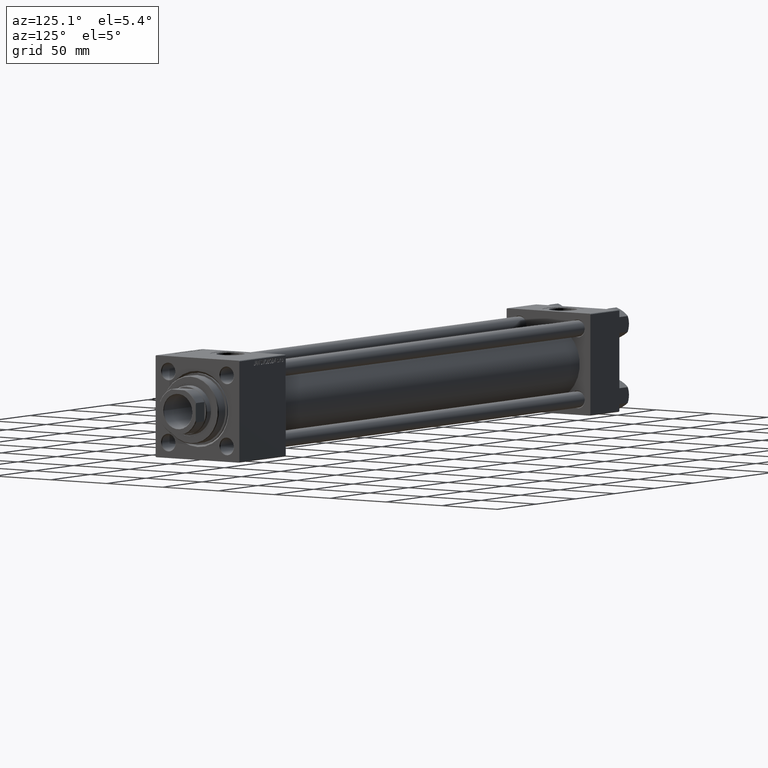
[diagram: clean part render]
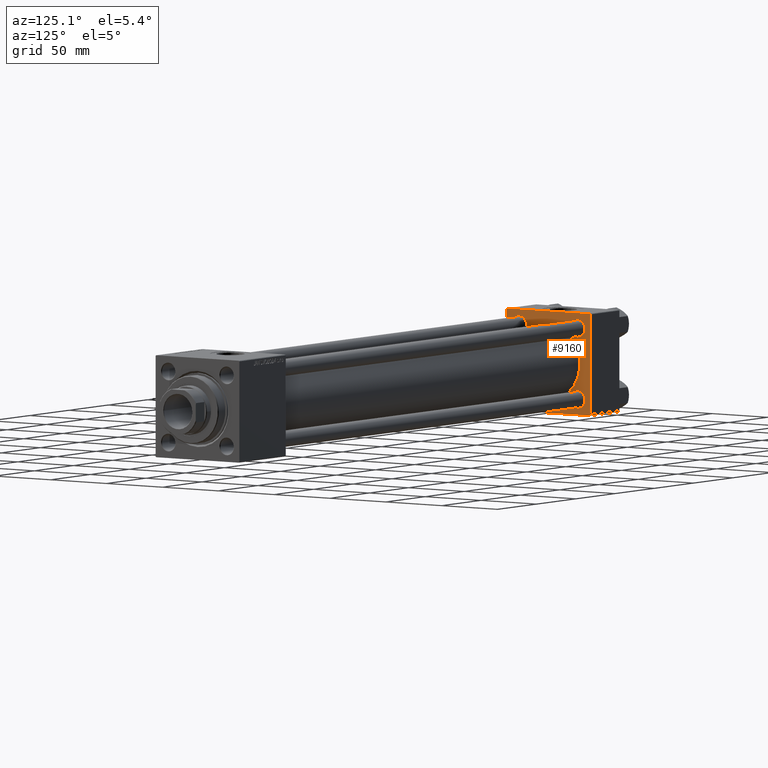
[diagram: same view with one face highlighted and labeled with its STEP entity id]
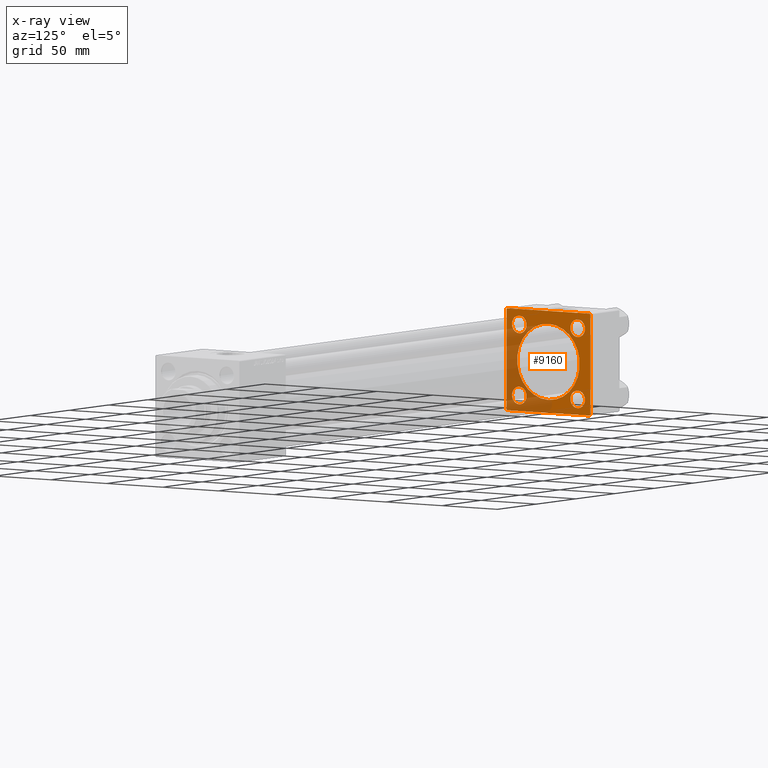
[diagram: x-ray of the same camera — body ghosted, the highlighted face saturated]
A machine part, auxiliary view. The second image highlights one B-rep face of the part: STEP entity #9160.
The next image is the same camera in x-ray: the body ghosted, the highlighted face saturated — about 37% of this face is hidden behind the body in this view.
In plain terms, the highlighted planar face has unit normal (-1, 0, 0).
Its self-contained STEP definition (entity closure, byte-faithful):
#152 = AXIS2_PLACEMENT_3D ( 'NONE', #41262, #33400, #26534 ) ;
#464 = CARTESIAN_POINT ( 'NONE',  ( 37.00000000000000000, -37.50000000000000000, -37.00000000000003553 ) ) ;
#982 = AXIS2_PLACEMENT_3D ( 'NONE', #27047, #30359, #42535 ) ;
#1073 = CARTESIAN_POINT ( 'NONE',  ( 36.99999999999997868, -2.602085213965210642E-15, 0.000000000000000000 ) ) ;
#1779 = CARTESIAN_POINT ( 'NONE',  ( 36.99999999999997868, 8.269258236473776482E-16, -28.00000000000000000 ) ) ;
#1851 = VECTOR ( 'NONE', #21358, 1000.000000000000114 ) ;
#2112 = CARTESIAN_POINT ( 'NONE',  ( 37.00000000000000000, 26.14999999999999858, 26.15000000000000213 ) ) ;
#2252 = CARTESIAN_POINT ( 'NONE',  ( 37.00000000000000000, -26.14999999999999147, -19.65000000000000924 ) ) ;
#2439 = CARTESIAN_POINT ( 'NONE',  ( 37.00000000000000000, -26.14999999999999147, -26.15000000000000924 ) ) ;
#3285 = DIRECTION ( 'NONE',  ( -0.000000000000000000, -0.7071067811865474617, -0.7071067811865474617 ) ) ;
#3317 = CARTESIAN_POINT ( 'NONE',  ( 37.00000000000000000, -26.14999999999999147, -32.65000000000001279 ) ) ;
#3660 = VERTEX_POINT ( 'NONE', #1779 ) ;
#3721 = ORIENTED_EDGE ( 'NONE', *, *, #48824, .T. ) ;
#4701 = AXIS2_PLACEMENT_3D ( 'NONE', #42688, #7907, #39128 ) ;
#4941 = VERTEX_POINT ( 'NONE', #18914 ) ;
#5015 = FACE_BOUND ( 'NONE', #33610, .T. ) ;
#5122 = DIRECTION ( 'NONE',  ( 0.000000000000000000, 0.000000000000000000, 1.000000000000000000 ) ) ;
#5207 = CIRCLE ( 'NONE', #33613, 6.500000000000008882 ) ;
#5676 = ORIENTED_EDGE ( 'NONE', *, *, #36969, .T. ) ;
#5786 = FACE_BOUND ( 'NONE', #15193, .T. ) ;
#5844 = EDGE_CURVE ( 'NONE', #32123, #3660, #41472, .T. ) ;
#6052 = FACE_BOUND ( 'NONE', #32094, .T. ) ;
#6137 = DIRECTION ( 'NONE',  ( 0.000000000000000000, 0.000000000000000000, 1.000000000000000000 ) ) ;
#6407 = CARTESIAN_POINT ( 'NONE',  ( 36.99999999999997868, -2.602085213965210642E-15, 0.000000000000000000 ) ) ;
#6630 = DIRECTION ( 'NONE',  ( 0.000000000000000000, 9.251858538542971581E-17, -1.000000000000000000 ) ) ;
#6944 = CARTESIAN_POINT ( 'NONE',  ( 37.00000000000000000, 37.49999999999999289, 37.50000000000000000 ) ) ;
#7053 = EDGE_CURVE ( 'NONE', #15750, #39791, #41385, .T. ) ;
#7098 = CARTESIAN_POINT ( 'NONE',  ( 37.00000000000000000, -37.50000000000000711, 36.99999999999999289 ) ) ;
#7104 = VECTOR ( 'NONE', #38381, 1000.000000000000000 ) ;
#7392 = LINE ( 'NONE', #26700, #7104 ) ;
#7582 = EDGE_CURVE ( 'NONE', #32331, #10271, #9876, .T. ) ;
#7907 = DIRECTION ( 'NONE',  ( -1.000000000000000000, 0.000000000000000000, -0.000000000000000000 ) ) ;
#8452 = AXIS2_PLACEMENT_3D ( 'NONE', #2439, #49145, #24794 ) ;
#9160 = ADVANCED_FACE ( 'NONE', ( #5786, #6052, #28902, #28388, #5015, #17210 ), #12652, .F. ) ;
#9225 = VERTEX_POINT ( 'NONE', #25098 ) ;
#9697 = DIRECTION ( 'NONE',  ( -1.000000000000000000, 0.000000000000000000, -0.000000000000000000 ) ) ;
#9876 = CIRCLE ( 'NONE', #152, 6.500000000000002665 ) ;
#9963 = LINE ( 'NONE', #46726, #37785 ) ;
#10271 = VERTEX_POINT ( 'NONE', #2252 ) ;
#10587 = ORIENTED_EDGE ( 'NONE', *, *, #17441, .F. ) ;
#11957 = EDGE_CURVE ( 'NONE', #3660, #32123, #26265, .T. ) ;
#12573 = VERTEX_POINT ( 'NONE', #14595 ) ;
#12652 = PLANE ( 'NONE',  #45635 ) ;
#13633 = ORIENTED_EDGE ( 'NONE', *, *, #5844, .F. ) ;
#13761 = CARTESIAN_POINT ( 'NONE',  ( 37.00000000000000000, 26.14999999999999858, 19.65000000000005187 ) ) ;
#13935 = EDGE_CURVE ( 'NONE', #33122, #27502, #35914, .T. ) ;
#14077 = AXIS2_PLACEMENT_3D ( 'NONE', #6407, #45255, #41440 ) ;
#14179 = EDGE_CURVE ( 'NONE', #9225, #12573, #18377, .T. ) ;
#14595 = CARTESIAN_POINT ( 'NONE',  ( 37.00000000000000000, 37.49999999999999289, -36.99999999999998579 ) ) ;
#14792 = CIRCLE ( 'NONE', #982, 6.500000000000008882 ) ;
#15193 = EDGE_LOOP ( 'NONE', ( #40289, #45486 ) ) ;
#15302 = CARTESIAN_POINT ( 'NONE',  ( 37.00000000000000000, -37.50000000000000711, 36.99999999999999289 ) ) ;
#15750 = VERTEX_POINT ( 'NONE', #44171 ) ;
#16701 = VERTEX_POINT ( 'NONE', #31195 ) ;
#16963 = DIRECTION ( 'NONE',  ( -0.000000000000000000, 0.000000000000000000, 1.000000000000000000 ) ) ;
#17210 = FACE_OUTER_BOUND ( 'NONE', #45529, .T. ) ;
#17430 = ORIENTED_EDGE ( 'NONE', *, *, #11957, .F. ) ;
#17441 = EDGE_CURVE ( 'NONE', #29167, #16701, #27728, .T. ) ;
#17795 = EDGE_CURVE ( 'NONE', #46188, #22746, #5207, .T. ) ;
#18377 = LINE ( 'NONE', #6944, #36759 ) ;
#18914 = CARTESIAN_POINT ( 'NONE',  ( 37.00000000000000000, 26.14999999999999858, -19.65000000000005542 ) ) ;
#19260 = ORIENTED_EDGE ( 'NONE', *, *, #17795, .T. ) ;
#19796 = CIRCLE ( 'NONE', #8452, 6.500000000000002665 ) ;
#20161 = DIRECTION ( 'NONE',  ( 0.000000000000000000, 0.7071067811865524577, -0.7071067811865426878 ) ) ;
#20354 = DIRECTION ( 'NONE',  ( 0.000000000000000000, -1.000000000000000000, -9.251858538542972814E-17 ) ) ;
#21358 = DIRECTION ( 'NONE',  ( 0.000000000000000000, -0.7071067811865474617, 0.7071067811865474617 ) ) ;
#21412 = ORIENTED_EDGE ( 'NONE', *, *, #37434, .T. ) ;
#21785 = VECTOR ( 'NONE', #20161, 1000.000000000000000 ) ;
#22010 = AXIS2_PLACEMENT_3D ( 'NONE', #1073, #39921, #5122 ) ;
#22144 = CARTESIAN_POINT ( 'NONE',  ( 37.00000000000000000, 26.14999999999999858, 32.64999999999995595 ) ) ;
#22746 = VERTEX_POINT ( 'NONE', #27330 ) ;
#22816 = CARTESIAN_POINT ( 'NONE',  ( 37.00000000000000000, -26.14999999999999147, 32.65000000000001990 ) ) ;
#23528 = DIRECTION ( 'NONE',  ( -1.000000000000000000, 0.000000000000000000, -0.000000000000000000 ) ) ;
#23660 = EDGE_CURVE ( 'NONE', #49572, #4941, #27331, .T. ) ;
#23670 = CARTESIAN_POINT ( 'NONE',  ( 36.99999999999997868, -2.602085213965210642E-15, 28.00000000000000000 ) ) ;
#24514 = ORIENTED_EDGE ( 'NONE', *, *, #32382, .T. ) ;
#24520 = CARTESIAN_POINT ( 'NONE',  ( 37.00000000000000000, 26.14999999999999858, -26.15000000000000213 ) ) ;
#24731 = EDGE_LOOP ( 'NONE', ( #5676, #19260 ) ) ;
#24794 = DIRECTION ( 'NONE',  ( 0.000000000000000000, 0.000000000000000000, 1.000000000000000000 ) ) ;
#24858 = ORIENTED_EDGE ( 'NONE', *, *, #23660, .T. ) ;
#25098 = CARTESIAN_POINT ( 'NONE',  ( 37.00000000000000000, 37.49999999999999289, 37.00000000000000000 ) ) ;
#25437 = CARTESIAN_POINT ( 'NONE',  ( 37.00000000000000000, 36.99999999999999289, 37.50000000000000000 ) ) ;
#25441 = CARTESIAN_POINT ( 'NONE',  ( 37.00000000000000000, 26.14999999999999858, 26.15000000000000213 ) ) ;
#25454 = EDGE_CURVE ( 'NONE', #44411, #15750, #7392, .T. ) ;
#26265 = CIRCLE ( 'NONE', #14077, 28.00000000000000000 ) ;
#26279 = EDGE_CURVE ( 'NONE', #4941, #49572, #27397, .T. ) ;
#26453 = DIRECTION ( 'NONE',  ( -0.000000000000000000, 0.7071067811865474617, 0.7071067811865474617 ) ) ;
#26534 = DIRECTION ( 'NONE',  ( 0.000000000000000000, 0.000000000000000000, 1.000000000000000000 ) ) ;
#26700 = CARTESIAN_POINT ( 'NONE',  ( 37.00000000000000000, 37.49999999999999289, 37.50000000000000000 ) ) ;
#27047 = CARTESIAN_POINT ( 'NONE',  ( 37.00000000000000000, -26.14999999999999147, 26.15000000000000924 ) ) ;
#27330 = CARTESIAN_POINT ( 'NONE',  ( 37.00000000000000000, -26.14999999999999147, 19.65000000000000213 ) ) ;
#27331 = CIRCLE ( 'NONE', #48415, 6.499999999999946709 ) ;
#27397 = CIRCLE ( 'NONE', #4701, 6.499999999999946709 ) ;
#27502 = VERTEX_POINT ( 'NONE', #22144 ) ;
#27728 = LINE ( 'NONE', #35600, #43341 ) ;
#28388 = FACE_BOUND ( 'NONE', #36282, .T. ) ;
#28777 = DIRECTION ( 'NONE',  ( 0.000000000000000000, 0.000000000000000000, 1.000000000000000000 ) ) ;
#28902 = FACE_BOUND ( 'NONE', #24731, .T. ) ;
#29167 = VERTEX_POINT ( 'NONE', #35072 ) ;
#30359 = DIRECTION ( 'NONE',  ( -1.000000000000000000, 0.000000000000000000, -0.000000000000000000 ) ) ;
#30796 = DIRECTION ( 'NONE',  ( 0.000000000000000000, 0.000000000000000000, -1.000000000000000000 ) ) ;
#31023 = EDGE_CURVE ( 'NONE', #49360, #16701, #39220, .T. ) ;
#31195 = CARTESIAN_POINT ( 'NONE',  ( 37.00000000000000000, -37.00000000000002132, -37.50000000000000711 ) ) ;
#32094 = EDGE_LOOP ( 'NONE', ( #24858, #42475 ) ) ;
#32113 = ORIENTED_EDGE ( 'NONE', *, *, #31023, .T. ) ;
#32123 = VERTEX_POINT ( 'NONE', #23670 ) ;
#32331 = VERTEX_POINT ( 'NONE', #3317 ) ;
#32382 = EDGE_CURVE ( 'NONE', #39791, #49360, #38110, .T. ) ;
#33122 = VERTEX_POINT ( 'NONE', #13761 ) ;
#33400 = DIRECTION ( 'NONE',  ( -1.000000000000000000, 0.000000000000000000, -0.000000000000000000 ) ) ;
#33556 = LINE ( 'NONE', #25437, #1851 ) ;
#33610 = EDGE_LOOP ( 'NONE', ( #13633, #17430 ) ) ;
#33613 = AXIS2_PLACEMENT_3D ( 'NONE', #39602, #35786, #39848 ) ;
#35072 = CARTESIAN_POINT ( 'NONE',  ( 37.00000000000000000, 36.99999999999997868, -37.50000000000000000 ) ) ;
#35600 = CARTESIAN_POINT ( 'NONE',  ( 37.00000000000000000, 37.49999999999999289, -37.50000000000000000 ) ) ;
#35704 = VECTOR ( 'NONE', #6630, 1000.000000000000000 ) ;
#35786 = DIRECTION ( 'NONE',  ( -1.000000000000000000, 0.000000000000000000, -0.000000000000000000 ) ) ;
#35914 = CIRCLE ( 'NONE', #49685, 6.499999999999946709 ) ;
#36028 = CIRCLE ( 'NONE', #49831, 6.499999999999946709 ) ;
#36282 = EDGE_LOOP ( 'NONE', ( #48018, #45826 ) ) ;
#36511 = CARTESIAN_POINT ( 'NONE',  ( 37.00000000000000000, 0.000000000000000000, 0.000000000000000000 ) ) ;
#36759 = VECTOR ( 'NONE', #30796, 1000.000000000000000 ) ;
#36969 = EDGE_CURVE ( 'NONE', #22746, #46188, #14792, .T. ) ;
#37434 = EDGE_CURVE ( 'NONE', #9225, #44411, #33556, .T. ) ;
#37453 = VECTOR ( 'NONE', #3285, 1000.000000000000114 ) ;
#37785 = VECTOR ( 'NONE', #26453, 1000.000000000000114 ) ;
#38110 = LINE ( 'NONE', #45723, #35704 ) ;
#38256 = CARTESIAN_POINT ( 'NONE',  ( 37.00000000000000000, 26.14999999999999858, -32.64999999999994884 ) ) ;
#38381 = DIRECTION ( 'NONE',  ( 0.000000000000000000, -1.000000000000000000, -9.251858538542971581E-17 ) ) ;
#39128 = DIRECTION ( 'NONE',  ( 0.000000000000000000, 0.000000000000000000, 1.000000000000000000 ) ) ;
#39220 = LINE ( 'NONE', #46323, #21785 ) ;
#39602 = CARTESIAN_POINT ( 'NONE',  ( 37.00000000000000000, -26.14999999999999147, 26.15000000000000924 ) ) ;
#39791 = VERTEX_POINT ( 'NONE', #15302 ) ;
#39848 = DIRECTION ( 'NONE',  ( 0.000000000000000000, 0.000000000000000000, 1.000000000000000000 ) ) ;
#39921 = DIRECTION ( 'NONE',  ( 1.000000000000000000, -0.000000000000000000, 0.000000000000000000 ) ) ;
#40007 = DIRECTION ( 'NONE',  ( 0.000000000000000000, 0.000000000000000000, 1.000000000000000000 ) ) ;
#40289 = ORIENTED_EDGE ( 'NONE', *, *, #7582, .T. ) ;
#41262 = CARTESIAN_POINT ( 'NONE',  ( 37.00000000000000000, -26.14999999999999147, -26.15000000000000924 ) ) ;
#41385 = LINE ( 'NONE', #7098, #37453 ) ;
#41440 = DIRECTION ( 'NONE',  ( 0.000000000000000000, 0.000000000000000000, 1.000000000000000000 ) ) ;
#41472 = CIRCLE ( 'NONE', #22010, 28.00000000000000000 ) ;
#42475 = ORIENTED_EDGE ( 'NONE', *, *, #26279, .T. ) ;
#42535 = DIRECTION ( 'NONE',  ( 0.000000000000000000, 0.000000000000000000, 1.000000000000000000 ) ) ;
#42688 = CARTESIAN_POINT ( 'NONE',  ( 37.00000000000000000, 26.14999999999999858, -26.15000000000000213 ) ) ;
#43341 = VECTOR ( 'NONE', #20354, 1000.000000000000000 ) ;
#43534 = ORIENTED_EDGE ( 'NONE', *, *, #25454, .T. ) ;
#43870 = DIRECTION ( 'NONE',  ( -1.000000000000000000, 0.000000000000000000, -0.000000000000000000 ) ) ;
#44022 = EDGE_CURVE ( 'NONE', #10271, #32331, #19796, .T. ) ;
#44171 = CARTESIAN_POINT ( 'NONE',  ( 37.00000000000000000, -37.00000000000000711, 37.49999999999999289 ) ) ;
#44411 = VERTEX_POINT ( 'NONE', #47818 ) ;
#44962 = EDGE_CURVE ( 'NONE', #27502, #33122, #36028, .T. ) ;
#45255 = DIRECTION ( 'NONE',  ( 1.000000000000000000, -0.000000000000000000, 0.000000000000000000 ) ) ;
#45486 = ORIENTED_EDGE ( 'NONE', *, *, #44022, .T. ) ;
#45529 = EDGE_LOOP ( 'NONE', ( #10587, #3721, #45771, #21412, #43534, #47320, #24514, #32113 ) ) ;
#45635 = AXIS2_PLACEMENT_3D ( 'NONE', #36511, #43870, #16963 ) ;
#45723 = CARTESIAN_POINT ( 'NONE',  ( 37.00000000000000000, -37.50000000000000711, 37.49999999999999289 ) ) ;
#45771 = ORIENTED_EDGE ( 'NONE', *, *, #14179, .F. ) ;
#45826 = ORIENTED_EDGE ( 'NONE', *, *, #44962, .T. ) ;
#46188 = VERTEX_POINT ( 'NONE', #22816 ) ;
#46323 = CARTESIAN_POINT ( 'NONE',  ( 37.00000000000000000, -37.00000000000002132, -37.50000000000000711 ) ) ;
#46726 = CARTESIAN_POINT ( 'NONE',  ( 37.00000000000000000, 37.49999999999999289, -36.99999999999998579 ) ) ;
#47320 = ORIENTED_EDGE ( 'NONE', *, *, #7053, .T. ) ;
#47818 = CARTESIAN_POINT ( 'NONE',  ( 37.00000000000000000, 36.99999999999999289, 37.50000000000000000 ) ) ;
#48018 = ORIENTED_EDGE ( 'NONE', *, *, #13935, .T. ) ;
#48056 = DIRECTION ( 'NONE',  ( -1.000000000000000000, 0.000000000000000000, -0.000000000000000000 ) ) ;
#48415 = AXIS2_PLACEMENT_3D ( 'NONE', #24520, #23528, #40007 ) ;
#48824 = EDGE_CURVE ( 'NONE', #29167, #12573, #9963, .T. ) ;
#49145 = DIRECTION ( 'NONE',  ( -1.000000000000000000, 0.000000000000000000, -0.000000000000000000 ) ) ;
#49360 = VERTEX_POINT ( 'NONE', #464 ) ;
#49572 = VERTEX_POINT ( 'NONE', #38256 ) ;
#49685 = AXIS2_PLACEMENT_3D ( 'NONE', #2112, #48056, #28777 ) ;
#49831 = AXIS2_PLACEMENT_3D ( 'NONE', #25441, #9697, #6137 ) ;